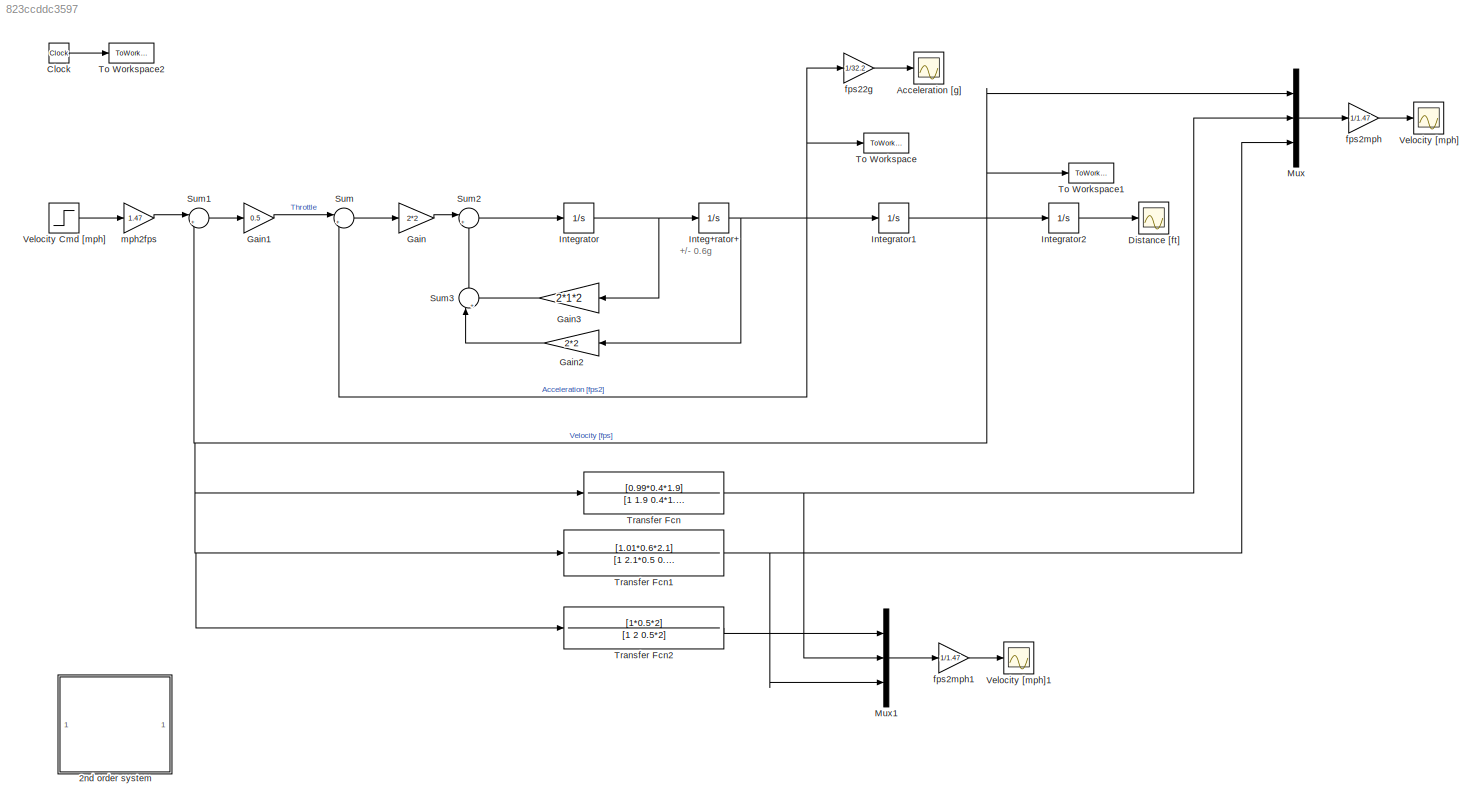
MODEL slx_823ccddc3597
KIND model
CONFIG AbsTol = auto
CONFIG EnableMultiTasking = off
CONFIG FixedStep = 0.05
CONFIG MaxStep = auto
CONFIG MinStep = auto
CONFIG RelTol = 1e-3
CONFIG SampleTimeConstraint = Unconstrained
CONFIG Solver = ode8
CONFIG SolverName = ode8
CONFIG StartTime = 0.0
CONFIG StopTime = 14
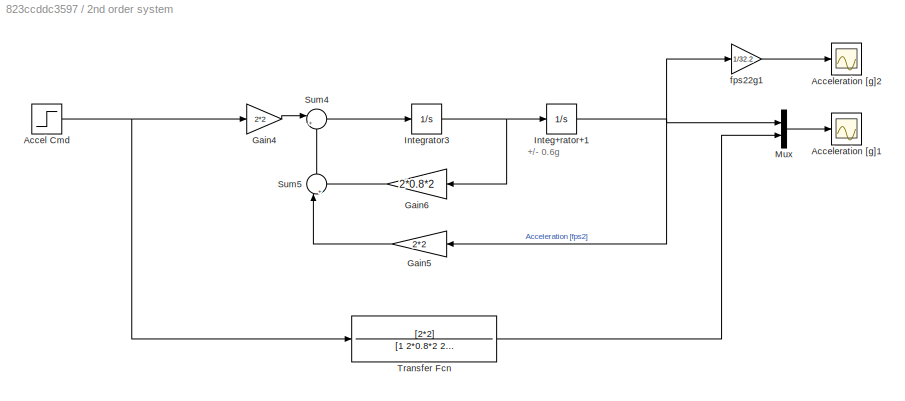
BLOCK [SubSystem] 2nd order system
  Ports = []
  RequestExecContextInheritance = off
BLOCK [Step] 2nd order system/Accel Cmd
  After = 45
  Before = 20
  SampleTime = 0
  Time = 0
BLOCK [Scope] 2nd order system/Acceleration [g]1
  Floating = off
  NumInputPorts = 1
  Ports = [1]
  ScopeSpecificationString = Simulink.scopes.TimeScopeBlockCfg('CurrentConfiguration', extmgr.ConfigurationSet(extmgr.Configuration('Core','General UI',true),extmgr.Configuration('Core','Source UI',true),extmgr.Configuration('Sources','WiredSimulink',true,'DataLoggingVariableName','ScopeData1'),extmgr.Configuration('Visuals','Time Domain',true,'SerializedDisplays',{struct('MinYLimReal','-5.71024','MaxYLimReal','51.3922','YLab...<+1468ch>
BLOCK [Scope] 2nd order system/Acceleration [g]2
  Floating = off
  NumInputPorts = 1
  Ports = [1]
  ScopeSpecificationString = Simulink.scopes.TimeScopeBlockCfg('CurrentConfiguration', extmgr.ConfigurationSet(extmgr.Configuration('Core','General UI',true),extmgr.Configuration('Core','Source UI',true),extmgr.Configuration('Sources','WiredSimulink',true,'DataLoggingVariableName','ScopeData2'),extmgr.Configuration('Visuals','Time Domain',true,'SerializedDisplays',{struct('MinYLimReal','-0.17734','MaxYLimReal','1.59603','YLab...<+1441ch>
BLOCK [Gain] 2nd order system/Gain4
  Gain = 2*2
  OutDataTypeStr = Inherit: Inherit via internal rule
  ParamDataTypeStr = Inherit: Inherit via internal rule
  SaturateOnIntegerOverflow = off
BLOCK [Gain] 2nd order system/Gain5
  Gain = 2*2
  OutDataTypeStr = Inherit: Inherit via internal rule
  ParamDataTypeStr = Inherit: Inherit via internal rule
  SaturateOnIntegerOverflow = off
BLOCK [Gain] 2nd order system/Gain6
  Gain = 2*0.8*2
  OutDataTypeStr = Inherit: Inherit via internal rule
  ParamDataTypeStr = Inherit: Inherit via internal rule
  SaturateOnIntegerOverflow = off
BLOCK [Integrator] 2nd order system/Integ+rator+1
  LimitOutput = on
  LowerSaturationLimit = -0.6*32.2*100
  Ports = [1, 1]
  UpperSaturationLimit = 0.6*32.2*100
BLOCK [Integrator] 2nd order system/Integrator3
  Ports = [1, 1]
BLOCK [Mux] 2nd order system/Mux
  DisplayOption = bar
  Inputs = 2
  Ports = [2, 1]
BLOCK [Sum] 2nd order system/Sum4
  IconShape = round
  InputSameDT = off
  Inputs = |+-
  OutDataTypeStr = Inherit: Inherit via internal rule
  Ports = [2, 1]
  SaturateOnIntegerOverflow = off
BLOCK [Sum] 2nd order system/Sum5
  IconShape = round
  InputSameDT = off
  Inputs = |++
  OutDataTypeStr = Inherit: Inherit via internal rule
  Ports = [2, 1]
  SaturateOnIntegerOverflow = off
BLOCK [TransferFcn] 2nd order system/Transfer Fcn
  Denominator = [1 2*0.8*2  2*2]
  Numerator = [2*2]
BLOCK [Gain] 2nd order system/fps22g1
  Gain = 1/32.2
  OutDataTypeStr = Inherit: Inherit via internal rule
  ParamDataTypeStr = Inherit: Inherit via internal rule
  SaturateOnIntegerOverflow = off
BLOCK [Scope] Acceleration [g]
  Floating = off
  NumInputPorts = 1
  Ports = [1]
  ScopeSpecificationString = Simulink.scopes.TimeScopeBlockCfg('CurrentConfiguration', extmgr.ConfigurationSet(extmgr.Configuration('Core','General UI',true),extmgr.Configuration('Core','Source UI',true),extmgr.Configuration('Sources','WiredSimulink',true,'DataLoggingVariableName','ScopeData2'),extmgr.Configuration('Visuals','Time Domain',true,'SerializedDisplays',{struct('MinYLimReal','-0.07477','MaxYLimReal','0.67297','YLab...<+1440ch>
BLOCK [Clock] Clock
BLOCK [Scope] Distance [ft]
  Floating = off
  NumInputPorts = 1
  Ports = [1]
  ScopeSpecificationString = Simulink.scopes.TimeScopeBlockCfg('CurrentConfiguration', extmgr.ConfigurationSet(extmgr.Configuration('Core','General UI',true),extmgr.Configuration('Core','Source UI',true),extmgr.Configuration('Sources','WiredSimulink',true),extmgr.Configuration('Visuals','Time Domain',true,'SerializedDisplays',{struct('MinYLimReal','-83.27475','MaxYLimReal','749.47272','YLabelReal','','MinYLimMag','0.00000','M...<+1397ch>
BLOCK [Gain] Gain
  Gain = 2*2
  OutDataTypeStr = Inherit: Inherit via internal rule
  ParamDataTypeStr = Inherit: Inherit via internal rule
  SaturateOnIntegerOverflow = off
BLOCK [Gain] Gain1
  Gain = 0.5
  OutDataTypeStr = Inherit: Inherit via internal rule
  ParamDataTypeStr = Inherit: Inherit via internal rule
  SaturateOnIntegerOverflow = off
BLOCK [Gain] Gain2
  Gain = 2*2
  OutDataTypeStr = Inherit: Inherit via internal rule
  ParamDataTypeStr = Inherit: Inherit via internal rule
  SaturateOnIntegerOverflow = off
BLOCK [Gain] Gain3
  Gain = 2*1*2
  OutDataTypeStr = Inherit: Inherit via internal rule
  ParamDataTypeStr = Inherit: Inherit via internal rule
  SaturateOnIntegerOverflow = off
BLOCK [Integrator] Integ+rator+
  LimitOutput = on
  LowerSaturationLimit = -0.6*32.2
  Ports = [1, 1]
  UpperSaturationLimit = 0.6*32.2
BLOCK [Integrator] Integrator
  Ports = [1, 1]
BLOCK [Integrator] Integrator1
  Ports = [1, 1]
BLOCK [Integrator] Integrator2
  Ports = [1, 1]
BLOCK [Mux] Mux
  DisplayOption = bar
  Inputs = 3
  Ports = [3, 1]
BLOCK [Mux] Mux1
  DisplayOption = bar
  Inputs = 3
  Ports = [3, 1]
BLOCK [Sum] Sum
  IconShape = round
  InputSameDT = off
  Inputs = |+-
  OutDataTypeStr = Inherit: Inherit via internal rule
  Ports = [2, 1]
  SaturateOnIntegerOverflow = off
BLOCK [Sum] Sum1
  IconShape = round
  InputSameDT = off
  Inputs = |+-
  OutDataTypeStr = Inherit: Inherit via internal rule
  Ports = [2, 1]
  SaturateOnIntegerOverflow = off
BLOCK [Sum] Sum2
  IconShape = round
  InputSameDT = off
  Inputs = |+-
  OutDataTypeStr = Inherit: Inherit via internal rule
  Ports = [2, 1]
  SaturateOnIntegerOverflow = off
BLOCK [Sum] Sum3
  IconShape = round
  InputSameDT = off
  Inputs = |++
  OutDataTypeStr = Inherit: Inherit via internal rule
  Ports = [2, 1]
  SaturateOnIntegerOverflow = off
BLOCK [ToWorkspace] To Workspace
  FixptAsFi = on
  MaxDataPoints = inf
  Ports = [1]
  SampleTime = -1
  Save2DSignal = 3-D array (concatenate along third dimension)
  VariableName = accel
BLOCK [ToWorkspace] To Workspace1
  FixptAsFi = on
  MaxDataPoints = inf
  Ports = [1]
  SampleTime = -1
  Save2DSignal = 3-D array (concatenate along third dimension)
  VariableName = vel
BLOCK [ToWorkspace] To Workspace2
  FixptAsFi = on
  MaxDataPoints = inf
  Ports = [1]
  SampleTime = -1
  Save2DSignal = 3-D array (concatenate along third dimension)
  VariableName = time
BLOCK [TransferFcn] Transfer Fcn
  Denominator = [1 1.9 0.4*1.9]
  Numerator = [0.99*0.4*1.9]
BLOCK [TransferFcn] Transfer Fcn1
  Denominator = [1 2.1*0.5 0.6*2.1]
  Numerator = [1.01*0.6*2.1]
BLOCK [TransferFcn] Transfer Fcn2
  Denominator = [1 2 0.5*2]
  Numerator = [1*0.5*2]
BLOCK [Step] Velocity Cmd [mph]
  After = 45
  SampleTime = 0
  Time = 0
BLOCK [Scope] Velocity [mph]
  Floating = off
  NumInputPorts = 1
  Ports = [1]
  ScopeSpecificationString = Simulink.scopes.TimeScopeBlockCfg('CurrentConfiguration', extmgr.ConfigurationSet(extmgr.Configuration('Core','General UI',true),extmgr.Configuration('Core','Source UI',true),extmgr.Configuration('Sources','WiredSimulink',true,'DataLoggingVariableName','ScopeData1'),extmgr.Configuration('Visuals','Time Domain',true,'SerializedDisplays',{struct('MinYLimReal','-5.5401','MaxYLimReal','49.86088','YLab...<+1450ch>
BLOCK [Scope] Velocity [mph]1
  Floating = off
  NumInputPorts = 1
  Ports = [1]
  ScopeSpecificationString = Simulink.scopes.TimeScopeBlockCfg('CurrentConfiguration', extmgr.ConfigurationSet(extmgr.Configuration('Core','General UI',true),extmgr.Configuration('Core','Source UI',true),extmgr.Configuration('Sources','WiredSimulink',true,'DataLoggingVariableName','ScopeData3'),extmgr.Configuration('Visuals','Time Domain',true,'SerializedDisplays',{struct('MinYLimReal','-5.5401','MaxYLimReal','49.86088','YLab...<+1453ch>
BLOCK [Gain] fps22g
  Gain = 1/32.2
  OutDataTypeStr = Inherit: Inherit via internal rule
  ParamDataTypeStr = Inherit: Inherit via internal rule
  SaturateOnIntegerOverflow = off
BLOCK [Gain] fps2mph
  Gain = 1/1.47
  OutDataTypeStr = Inherit: Inherit via internal rule
  ParamDataTypeStr = Inherit: Inherit via internal rule
  SaturateOnIntegerOverflow = off
BLOCK [Gain] fps2mph1
  Gain = 1/1.47
  OutDataTypeStr = Inherit: Inherit via internal rule
  ParamDataTypeStr = Inherit: Inherit via internal rule
  SaturateOnIntegerOverflow = off
BLOCK [Gain] mph2fps
  Gain = 1.47
  OutDataTypeStr = Inherit: Inherit via internal rule
  ParamDataTypeStr = Inherit: Inherit via internal rule
  SaturateOnIntegerOverflow = off
ANNOTATION (root): +/- 0.6g
ANNOTATION 2nd order system: +/- 0.6g
NET 2nd order system/Accel Cmd:1 -> 2nd order system/Gain4:1, 2nd order system/Transfer Fcn:1
LINE 2nd order system/Gain4:1 -> 2nd order system/Sum4:1
LINE 2nd order system/Gain5:1 -> 2nd order system/Sum5:1
LINE 2nd order system/Gain6:1 -> 2nd order system/Sum5:2
NET 2nd order system/Integ+rator+1:1 -> 2nd order system/Gain5:1, 2nd order system/Mux:1, 2nd order system/fps22g1:1
NET 2nd order system/Integrator3:1 -> 2nd order system/Gain6:1, 2nd order system/Integ+rator+1:1
LINE 2nd order system/Mux:1 -> 2nd order system/Acceleration [g]1:1
LINE 2nd order system/Sum4:1 -> 2nd order system/Integrator3:1
LINE 2nd order system/Sum5:1 -> 2nd order system/Sum4:2
LINE 2nd order system/Transfer Fcn:1 -> 2nd order system/Mux:2
LINE 2nd order system/fps22g1:1 -> 2nd order system/Acceleration [g]2:1
LINE Clock:1 -> To Workspace2:1
LINE Gain1:1 -> Sum:1
LINE Gain2:1 -> Sum3:1
LINE Gain3:1 -> Sum3:2
LINE Gain:1 -> Sum2:1
NET Integ+rator+:1 -> Gain2:1, Integrator1:1, Sum:2, To Workspace:1, fps22g:1
NET Integrator1:1 -> Integrator2:1, Mux:1, Sum1:2, To Workspace1:1, Transfer Fcn1:1, Transfer Fcn2:1, Transfer Fcn:1
LINE Integrator2:1 -> Distance [ft]:1
NET Integrator:1 -> Gain3:1, Integ+rator+:1
LINE Mux1:1 -> fps2mph1:1
LINE Mux:1 -> fps2mph:1
LINE Sum1:1 -> Gain1:1
LINE Sum2:1 -> Integrator:1
LINE Sum3:1 -> Sum2:2
LINE Sum:1 -> Gain:1
NET Transfer Fcn1:1 -> Mux1:3, Mux:3
LINE Transfer Fcn2:1 -> Mux1:1
NET Transfer Fcn:1 -> Mux1:2, Mux:2
LINE Velocity Cmd [mph]:1 -> mph2fps:1
LINE fps22g:1 -> Acceleration [g]:1
LINE fps2mph1:1 -> Velocity [mph]1:1
LINE fps2mph:1 -> Velocity [mph]:1
LINE mph2fps:1 -> Sum1:1
note: NET lines group one-source signal fan-out (src -> all destinations, sorted); 1:1 wires keep LINE
